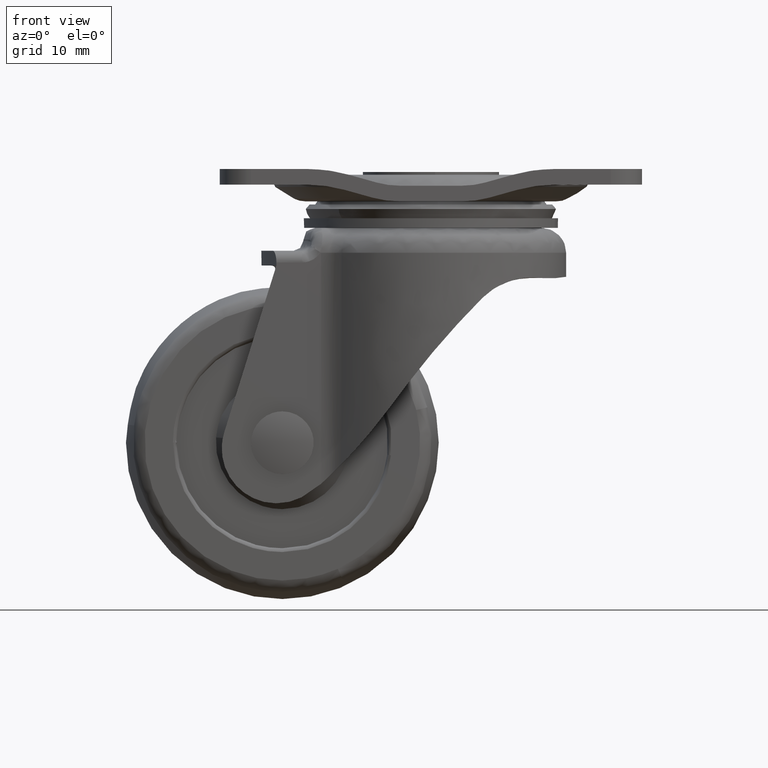
[diagram: clean part render]
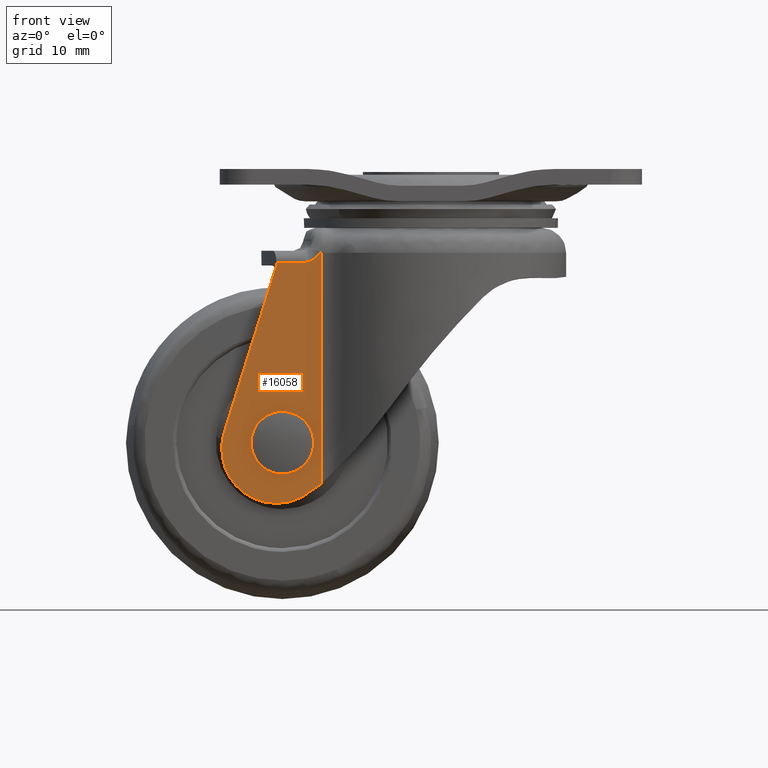
[diagram: same view with one face highlighted and labeled with its STEP entity id]
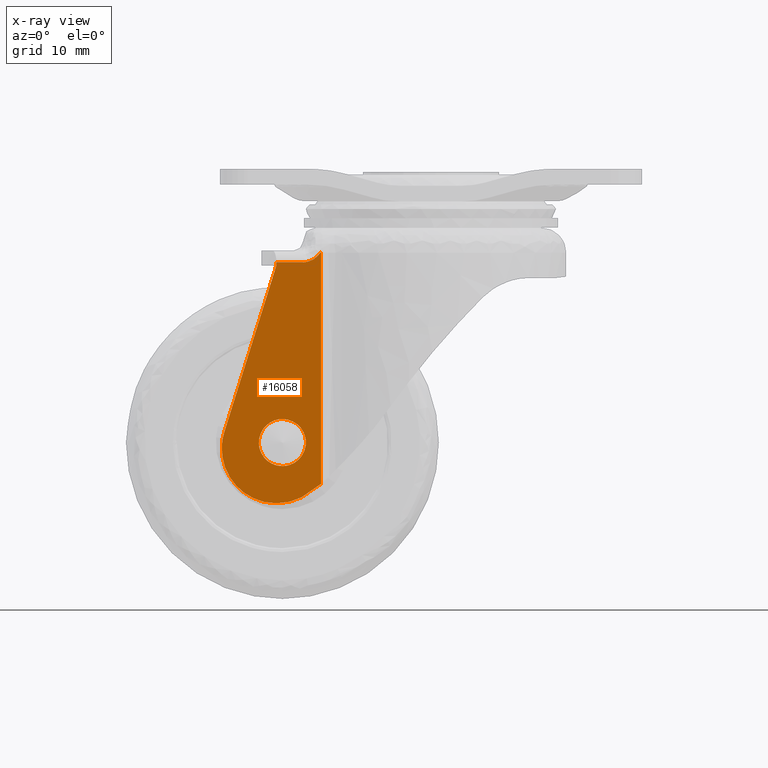
[diagram: x-ray of the same camera — body ghosted, the highlighted face saturated]
A machine part, front view. The second image highlights one B-rep face of the part: STEP entity #16058.
The next image is the same camera in x-ray: the body ghosted, the highlighted face saturated — about 0% of this face is hidden behind the body in this view.
In plain terms, the highlighted face is a freeform B-spline surface patch.
Its self-contained STEP definition (entity closure, byte-faithful):
#9837=CARTESIAN_POINT('',(-22.004385743238149,-12.000123000000000,-35.183941104194119));
#9838=VERTEX_POINT('',#9837);
#9844=CARTESIAN_POINT('',(-19.0,-12.000123000000000,-38.010185000000313));
#9845=VERTEX_POINT('',#9844);
#9846=CARTESIAN_POINT('',(-19.0,-12.000123000000000,-38.010185000000313));
#9847=CARTESIAN_POINT('',(-21.831525261019795,-12.000122999999999,-38.010185000000313));
#9848=CARTESIAN_POINT('',(-22.004385743238153,-12.000122999999997,-35.183941104194119));
#9856=(BOUNDED_CURVE()B_SPLINE_CURVE(2,(#9846,#9847,#9848),.UNSPECIFIED.,.F.,.U.)B_SPLINE_CURVE_WITH_KNOTS((3,3),(0.500000000000000,0.739332962219674),.UNSPECIFIED.)CURVE()GEOMETRIC_REPRESENTATION_ITEM()RATIONAL_B_SPLINE_CURVE((1.0,0.719603993309285,0.976072041625420))REPRESENTATION_ITEM(''));
#9857=EDGE_CURVE('',#9845,#9838,#9856,.T.);
#9859=CARTESIAN_POINT('',(-16.011041325663701,-12.000123000000000,-34.644901953527310));
#9860=VERTEX_POINT('',#9859);
#9861=CARTESIAN_POINT('',(-16.011041325663694,-12.000123000000004,-34.644901953527317));
#9862=CARTESIAN_POINT('',(-15.989999999999801,-12.000123000000006,-34.821920399690271));
#9863=CARTESIAN_POINT('',(-15.989999999999799,-12.000123000000000,-35.000185000000101));
#9864=CARTESIAN_POINT('',(-15.989999999999796,-12.000123000000000,-38.010185000000298));
#9865=CARTESIAN_POINT('',(-19.0,-12.000123000000000,-38.010185000000313));
#9873=(BOUNDED_CURVE()B_SPLINE_CURVE(2,(#9861,#9862,#9863,#9864,#9865),.UNSPECIFIED.,.F.,.U.)B_SPLINE_CURVE_WITH_KNOTS((3,2,3),(0.229562473498012,0.250000000000000,0.500000000000000),.UNSPECIFIED.)CURVE()GEOMETRIC_REPRESENTATION_ITEM()RATIONAL_B_SPLINE_CURVE((0.956026754153326,0.976055948312990,1.0,0.707106781186547,1.0))REPRESENTATION_ITEM(''));
#9874=EDGE_CURVE('',#9860,#9845,#9873,.T.);
#9918=CARTESIAN_POINT('',(-19.0,-12.000123000000000,-31.990184999999890));
#9919=VERTEX_POINT('',#9918);
#9920=CARTESIAN_POINT('',(-19.0,-12.000123000000000,-31.990184999999890));
#9921=CARTESIAN_POINT('',(-16.326594677167080,-12.000123000000002,-31.990184999999897));
#9922=CARTESIAN_POINT('',(-16.011041325663694,-12.000123000000004,-34.644901953527317));
#9930=(BOUNDED_CURVE()B_SPLINE_CURVE(2,(#9920,#9921,#9922),.UNSPECIFIED.,.F.,.U.)B_SPLINE_CURVE_WITH_KNOTS((3,3),(0.0,0.229562473498012),.UNSPECIFIED.)CURVE()GEOMETRIC_REPRESENTATION_ITEM()RATIONAL_B_SPLINE_CURVE((1.0,0.731050832873557,0.956026754153326))REPRESENTATION_ITEM(''));
#9931=EDGE_CURVE('',#9919,#9860,#9930,.T.);
#9933=CARTESIAN_POINT('',(-22.004385743238149,-12.000123000000006,-35.183941104194119));
#9934=CARTESIAN_POINT('',(-22.010000000000204,-12.000123000000004,-35.092148817723498));
#9935=CARTESIAN_POINT('',(-22.010000000000201,-12.000123000000000,-35.000185000000101));
#9936=CARTESIAN_POINT('',(-22.010000000000197,-12.000123000000000,-31.990184999999897));
#9937=CARTESIAN_POINT('',(-19.0,-12.000123000000000,-31.990184999999890));
#9945=(BOUNDED_CURVE()B_SPLINE_CURVE(2,(#9933,#9934,#9935,#9936,#9937),.UNSPECIFIED.,.F.,.U.)B_SPLINE_CURVE_WITH_KNOTS((3,2,3),(0.739332962219675,0.750000000000000,1.0),.UNSPECIFIED.)CURVE()GEOMETRIC_REPRESENTATION_ITEM()RATIONAL_B_SPLINE_CURVE((0.976072041625422,0.987502787877263,1.0,0.707106781186547,1.0))REPRESENTATION_ITEM(''));
#9946=EDGE_CURVE('',#9838,#9919,#9945,.T.);
#12112=CARTESIAN_POINT('',(-19.761410783995402,-12.000122999999981,-12.351680336433819));
#12113=VERTEX_POINT('',#12112);
#14022=CARTESIAN_POINT('',(-14.114885028686260,-12.000123000000000,-10.664413702162101));
#14023=VERTEX_POINT('',#14022);
#14024=CARTESIAN_POINT('',(-14.119044286810601,-12.000123000000000,-10.661290319806239));
#14025=VERTEX_POINT('',#14024);
#14026=CARTESIAN_POINT('',(-14.114885028686260,-12.000123000000000,-10.664413702162101));
#14027=CARTESIAN_POINT('',(-14.116179225753060,-12.000123000000000,-10.663259943518620));
#14028=CARTESIAN_POINT('',(-14.117574741412010,-12.000123000000000,-10.662210396635880));
#14029=CARTESIAN_POINT('',(-14.119044286810601,-12.000123000000000,-10.661290319806239));
#14030=B_SPLINE_CURVE_WITH_KNOTS('',3,(#14026,#14027,#14028,#14029),.UNSPECIFIED.,.F.,.U.,(4,4),(0.0,0.000005201436867),.UNSPECIFIED.);
#14031=EDGE_CURVE('',#14023,#14025,#14030,.T.);
#14178=CARTESIAN_POINT('',(-16.481202483074352,-12.000123000000000,-11.961680336433821));
#14179=VERTEX_POINT('',#14178);
#14193=CARTESIAN_POINT('',(-14.119044286810601,-12.000123000000000,-10.661290319806239));
#14194=CARTESIAN_POINT('',(-14.181365946468540,-12.000123000000000,-10.761672722390349));
#14195=CARTESIAN_POINT('',(-14.249977666506940,-12.000123000000000,-10.857490893199961));
#14196=CARTESIAN_POINT('',(-14.362221813310320,-12.000123000000000,-10.994450549468910));
#14197=CARTESIAN_POINT('',(-14.401111220209890,-12.000123000000000,-11.038853921379809));
#14198=CARTESIAN_POINT('',(-14.481193874128991,-12.000123000000000,-11.124561547970741));
#14199=CARTESIAN_POINT('',(-14.522468926595460,-12.000123000000000,-11.165967231328880));
#14200=CARTESIAN_POINT('',(-14.649920942998600,-12.000123000000000,-11.285927124464950));
#14201=CARTESIAN_POINT('',(-14.739710215631940,-12.000123000000000,-11.360241256253740));
#14202=CARTESIAN_POINT('',(-14.881602625549551,-12.000123000000000,-11.463251215196310));
#14203=CARTESIAN_POINT('',(-14.930105162535421,-12.000123000000000,-11.496173377183251));
#14204=CARTESIAN_POINT('',(-15.029561623266050,-12.000123000000000,-11.559140297282740));
#14205=CARTESIAN_POINT('',(-15.080552666180260,-12.000123000000000,-11.589186943397600));
#14206=CARTESIAN_POINT('',(-15.338071617886859,-12.000123000000000,-11.730144135129830));
#14207=CARTESIAN_POINT('',(-15.554896384131030,-12.000123000000000,-11.815497052297980));
#14208=CARTESIAN_POINT('',(-15.839299062052380,-12.000123000000000,-11.888277914561931));
#14209=CARTESIAN_POINT('',(-15.897024201594810,-12.000123000000000,-11.901139871781551));
#14210=CARTESIAN_POINT('',(-16.012815112252550,-12.000123000000000,-11.923138336971530));
#14211=CARTESIAN_POINT('',(-16.070905277299371,-12.000123000000000,-11.932294296407120));
#14212=CARTESIAN_POINT('',(-16.245753803344051,-12.000123000000000,-11.954290085995940));
#14213=CARTESIAN_POINT('',(-16.363087817561819,-12.000123000000000,-11.961680336433821));
#14214=CARTESIAN_POINT('',(-16.481202483074352,-12.000123000000000,-11.961680336433821));
#14215=B_SPLINE_CURVE_WITH_KNOTS('',3,(#14193,#14194,#14195,#14196,#14197,#14198,#14199,#14200,#14201,#14202,#14203,#14204,#14205,#14206,#14207,#14208,#14209,#14210,#14211,#14212,#14213,#14214),.UNSPECIFIED.,.F.,.U.,(4,2,2,2,2,2,2,2,2,2,4),(0.0,0.125000000000002,0.187500000000003,0.250000000000004,0.375000000000004,0.437500000000004,0.500000000000005,0.750000000000007,0.812500000000005,0.875000000000003,1.0),.UNSPECIFIED.);
#14216=EDGE_CURVE('',#14025,#14179,#14215,.T.);
#14255=CARTESIAN_POINT('',(-19.761410783995402,-12.000123000000000,-11.961680336433821));
#14256=VERTEX_POINT('',#14255);
#14287=CARTESIAN_POINT('',(-16.481202483074352,-12.000123000000000,-11.961680336433821));
#14288=CARTESIAN_POINT('',(-19.761410783995402,-12.000123000000000,-11.961680336433821));
#14289=QUASI_UNIFORM_CURVE('',1,(#14287,#14288),.UNSPECIFIED.,.F.,.U.);
#14290=EDGE_CURVE('',#14179,#14256,#14289,.T.);
#14413=CARTESIAN_POINT('',(-14.060087623655519,-12.000123000000000,-10.713270000000000));
#14414=VERTEX_POINT('',#14413);
#14415=CARTESIAN_POINT('',(-14.060087623655519,-12.000123000000000,-10.713270000000000));
#14416=CARTESIAN_POINT('',(-14.078352443562011,-12.000123000000000,-10.696984605783340));
#14417=CARTESIAN_POINT('',(-14.096618259829141,-12.000123000000000,-10.680698272143150));
#14418=CARTESIAN_POINT('',(-14.114885028686260,-12.000123000000000,-10.664413702162101));
#14419=QUASI_UNIFORM_CURVE('',3,(#14415,#14416,#14417,#14418),.UNSPECIFIED.,.F.,.U.);
#14420=EDGE_CURVE('',#14414,#14023,#14419,.T.);
#14753=CARTESIAN_POINT('',(-14.060087623655519,-12.000122999999959,-40.283055452977393));
#14754=VERTEX_POINT('',#14753);
#14755=CARTESIAN_POINT('',(-14.060087623655519,-12.000122999999959,-40.283055452977393));
#14756=CARTESIAN_POINT('',(-14.060087623655519,-12.000123000000000,-10.713270000000000));
#14757=QUASI_UNIFORM_CURVE('',1,(#14755,#14756),.UNSPECIFIED.,.F.,.U.);
#14758=EDGE_CURVE('',#14754,#14414,#14757,.T.);
#14857=CARTESIAN_POINT('',(-19.761410783995402,-12.000122999999981,-12.351680336433819));
#14858=CARTESIAN_POINT('',(-19.761410783995402,-12.000123000000000,-11.961680336433821));
#14859=QUASI_UNIFORM_CURVE('',1,(#14857,#14858),.UNSPECIFIED.,.F.,.U.);
#14860=EDGE_CURVE('',#12113,#14256,#14859,.T.);
#15579=CARTESIAN_POINT('',(-26.451253000000001,-12.000122999999959,-33.747030000000002));
#15580=VERTEX_POINT('',#15579);
#15581=CARTESIAN_POINT('',(-26.451253000000001,-12.000122999999959,-33.747030000000002));
#15582=CARTESIAN_POINT('',(-19.761410783995402,-12.000122999999981,-12.351680336433819));
#15583=QUASI_UNIFORM_CURVE('',1,(#15581,#15582),.UNSPECIFIED.,.F.,.U.);
#15584=EDGE_CURVE('',#15580,#12113,#15583,.T.);
#15718=CARTESIAN_POINT('',(-16.526882959402649,-12.000122999999959,-41.984015720199601));
#15719=VERTEX_POINT('',#15718);
#15720=CARTESIAN_POINT('',(-14.060087623655519,-12.000122999999959,-40.283055452977393));
#15721=CARTESIAN_POINT('',(-15.186465895187810,-12.000122999999959,-41.288739063598719));
#15722=CARTESIAN_POINT('',(-16.526882959402649,-12.000122999999959,-41.984015720199586));
#15730=(BOUNDED_CURVE()B_SPLINE_CURVE(2,(#15720,#15721,#15722),.UNSPECIFIED.,.F.,.U.)CURVE()GEOMETRIC_REPRESENTATION_ITEM()QUASI_UNIFORM_CURVE()RATIONAL_B_SPLINE_CURVE((1.0,0.992175687760716,1.0))REPRESENTATION_ITEM(''));
#15731=EDGE_CURVE('',#14754,#15719,#15730,.T.);
#15801=CARTESIAN_POINT('',(-16.526882959402649,-12.000122999999959,-41.984015720199601));
#15802=CARTESIAN_POINT('',(-20.648121809426886,-12.000122999999961,-44.121709012293955));
#15803=CARTESIAN_POINT('',(-24.220608414924101,-12.000122999999959,-41.156631994144632));
#15804=CARTESIAN_POINT('',(-27.793095020421312,-12.000122999999961,-38.191554975995309));
#15805=CARTESIAN_POINT('',(-26.451253000000001,-12.000122999999959,-33.747030000000002));
#15813=(BOUNDED_CURVE()B_SPLINE_CURVE(2,(#15801,#15802,#15803,#15804,#15805),.UNSPECIFIED.,.F.,.U.)B_SPLINE_CURVE_WITH_KNOTS((3,2,3),(0.0,0.500000000000000,1.0),.UNSPECIFIED.)CURVE()GEOMETRIC_REPRESENTATION_ITEM()RATIONAL_B_SPLINE_CURVE((1.0,0.833366745029348,1.0,0.833366745029348,1.0))REPRESENTATION_ITEM(''));
#15814=EDGE_CURVE('',#15719,#15580,#15813,.T.);
#16036=CARTESIAN_POINT('',(-27.382517412233419,-12.000123000000000,-44.373670468098346));
#16037=CARTESIAN_POINT('',(-27.382517412233419,-12.000123000000000,-9.057467061164296));
#16038=CARTESIAN_POINT('',(-13.426290109102460,-12.000123000000000,-44.373670468098346));
#16039=CARTESIAN_POINT('',(-13.426290109102460,-12.000123000000000,-9.057467061164296));
#16040=B_SPLINE_SURFACE_WITH_KNOTS('',1,1,((#16036,#16038),(#16037,#16039)),.UNSPECIFIED.,.F.,.F.,.U.,(2,2),(2,2),(0.0,35.316203406934058),(0.0,13.956227303130960),.UNSPECIFIED.);
#16041=ORIENTED_EDGE('',*,*,#14420,.T.);
#16042=ORIENTED_EDGE('',*,*,#14031,.T.);
#16043=ORIENTED_EDGE('',*,*,#14216,.T.);
#16044=ORIENTED_EDGE('',*,*,#14290,.T.);
#16045=ORIENTED_EDGE('',*,*,#14860,.F.);
#16046=ORIENTED_EDGE('',*,*,#15584,.F.);
#16047=ORIENTED_EDGE('',*,*,#15814,.F.);
#16048=ORIENTED_EDGE('',*,*,#15731,.F.);
#16049=ORIENTED_EDGE('',*,*,#14758,.T.);
#16050=EDGE_LOOP('',(#16041,#16042,#16043,#16044,#16045,#16046,#16047,#16048,#16049));
#16051=FACE_OUTER_BOUND('',#16050,.T.);
#16052=ORIENTED_EDGE('',*,*,#9857,.T.);
#16053=ORIENTED_EDGE('',*,*,#9946,.T.);
#16054=ORIENTED_EDGE('',*,*,#9931,.T.);
#16055=ORIENTED_EDGE('',*,*,#9874,.T.);
#16056=EDGE_LOOP('',(#16052,#16053,#16054,#16055));
#16057=FACE_BOUND('',#16056,.T.);
#16058=ADVANCED_FACE('',(#16051,#16057),#16040,.F.);